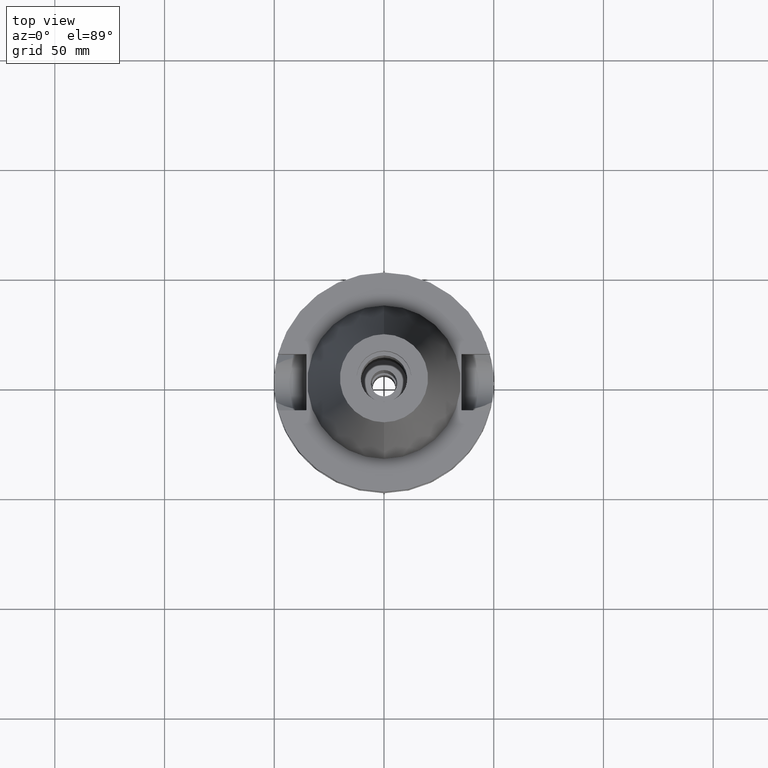
[diagram: clean part render]
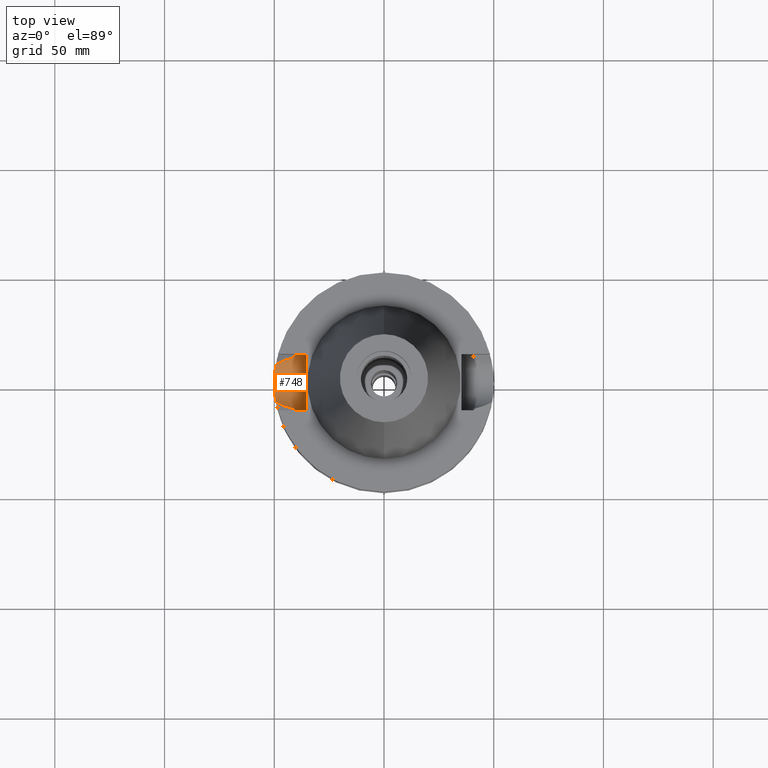
[diagram: same view with one face highlighted and labeled with its STEP entity id]
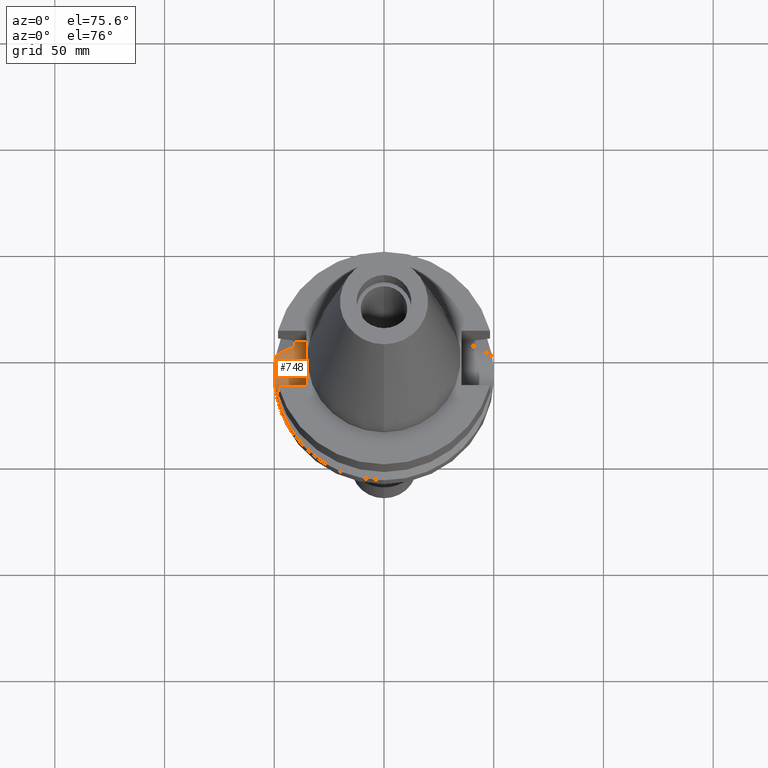
[diagram: same view with one face highlighted and labeled with its STEP entity id]
A machine part, top view. The second image highlights one B-rep face of the part: STEP entity #748.
A second angle (auxiliary view) of the same face is appended — the face is thin or edge-on in the first view.
In plain terms, the highlighted cylindrical surface (edge-blend (fillet) strip) has radius 12.85 mm, axis along (-1, 0, 0).
Its self-contained STEP definition (entity closure, byte-faithful):
#2 = CARTESIAN_POINT ( 'NONE',  ( -49.54911688010221127, 6.699663358771627664, -32.11529720896147921 ) ) ;
#8 = CARTESIAN_POINT ( 'NONE',  ( -35.39999999999999858, 1.497743035356999952E-14, -21.14999999999999858 ) ) ;
#37 = EDGE_CURVE ( 'NONE', #409, #2990, #1591, .T. ) ;
#58 = CARTESIAN_POINT ( 'NONE',  ( -49.96641267293247068, 1.854385219668790219, -33.87144511913140121 ) ) ;
#76 = LINE ( 'NONE', #3002, #2242 ) ;
#92 = CARTESIAN_POINT ( 'NONE',  ( -49.86316841597869143, 3.774661687920132014, -33.45988861054671304 ) ) ;
#96 = CARTESIAN_POINT ( 'NONE',  ( -40.85052569294000335, -11.72538061688000077, -26.40718074535000426 ) ) ;
#112 = CARTESIAN_POINT ( 'NONE',  ( -49.79288518047053458, 4.546060314977777850, -33.16898483582498613 ) ) ;
#115 = CARTESIAN_POINT ( 'NONE',  ( -46.25426349573270102, -10.02134542749241675, -29.19415820196960709 ) ) ;
#131 = CARTESIAN_POINT ( 'NONE',  ( -49.79024291477829678, -4.574903425347746300, -33.15803416390642866 ) ) ;
#211 = CARTESIAN_POINT ( 'NONE',  ( -45.46255620677718667, 10.33423941121415268, -28.78715773051326465 ) ) ;
#233 = CARTESIAN_POINT ( 'NONE',  ( -46.92215282494610307, 9.777057082545626443, -29.53784557490737228 ) ) ;
#238 = ORIENTED_EDGE ( 'NONE', *, *, #1646, .T. ) ;
#239 = CARTESIAN_POINT ( 'NONE',  ( -49.52357036712535177, 6.886290592483789830, -31.99961560319520260 ) ) ;
#317 = CARTESIAN_POINT ( 'NONE',  ( -45.39712351162965120, -10.35909442914371148, -28.75340166297553068 ) ) ;
#336 = CARTESIAN_POINT ( 'NONE',  ( -49.79203021163728948, 4.555405786585887462, -33.16544452545556254 ) ) ;
#339 = CARTESIAN_POINT ( 'NONE',  ( -44.04355470672884110, -10.86774847448676340, -28.05710846395182401 ) ) ;
#341 = ORIENTED_EDGE ( 'NONE', *, *, #2988, .F. ) ;
#344 = ORIENTED_EDGE ( 'NONE', *, *, #37, .T. ) ;
#354 = CARTESIAN_POINT ( 'NONE',  ( -49.99991418524945175, 0.01116271476028307501, -34.00001628486791105 ) ) ;
#364 = CARTESIAN_POINT ( 'NONE',  ( -49.99934626388233738, -0.7783924087702759342, -33.99780972341164897 ) ) ;
#409 = VERTEX_POINT ( 'NONE', #2184 ) ;
#419 = CARTESIAN_POINT ( 'NONE',  ( -40.74530521662885718, -12.08734525798915982, -25.53455946907622476 ) ) ;
#438 = CARTESIAN_POINT ( 'NONE',  ( -40.60613812303880366, -12.54578004799953739, -23.92968102609992087 ) ) ;
#460 = CYLINDRICAL_SURFACE ( 'NONE', #628, 12.85000000000000320 ) ;
#469 = CARTESIAN_POINT ( 'NONE',  ( -49.32372953362855839, 8.203519559120604043, -31.05192038084446438 ) ) ;
#485 = CARTESIAN_POINT ( 'NONE',  ( -49.60527657791599410, 6.280734339319516302, -32.36827992143699362 ) ) ;
#496 = CARTESIAN_POINT ( 'NONE',  ( -40.56599794183719609, 12.67508828619679484, -23.26599945042062245 ) ) ;
#514 = CARTESIAN_POINT ( 'NONE',  ( -40.51083188481999997, 12.84999999999999964, -21.14999999999999858 ) ) ;
#531 = CARTESIAN_POINT ( 'NONE',  ( -40.73816962964794186, 12.11682243018512750, -25.53412644634842366 ) ) ;
#542 = CARTESIAN_POINT ( 'NONE',  ( -49.38324903674280364, -7.860828855441734930, -31.35774967441885863 ) ) ;
#543 = ORIENTED_EDGE ( 'NONE', *, *, #784, .T. ) ;
#547 = DIRECTION ( 'NONE',  ( 0.0000000000000000000, -1.000000000000000000, 0.0000000000000000000 ) ) ;
#586 = CARTESIAN_POINT ( 'NONE',  ( -49.99991299091240649, -0.01387171431934752092, -34.00001339701644554 ) ) ;
#621 = CARTESIAN_POINT ( 'NONE',  ( -48.09130041327800598, -9.195347626747997438, -30.13737256061769543 ) ) ;
#628 = AXIS2_PLACEMENT_3D ( 'NONE', #8, #1918, #2193 ) ;
#684 = ORIENTED_EDGE ( 'NONE', *, *, #1184, .F. ) ;
#698 = CARTESIAN_POINT ( 'NONE',  ( -40.63720027270115054, -12.44499102499862353, -24.35263434040134101 ) ) ;
#700 = CARTESIAN_POINT ( 'NONE',  ( -44.90448309188467846, 10.54133073583868807, -28.50009668640061378 ) ) ;
#722 = CARTESIAN_POINT ( 'NONE',  ( -49.55497938657501322, 6.656146421916069755, -32.14173509730801470 ) ) ;
#729 = CARTESIAN_POINT ( 'NONE',  ( -45.20738435670087796, 10.43019398160797095, -28.65591291874309832 ) ) ;
#734 = CARTESIAN_POINT ( 'NONE',  ( -49.37891072628274003, 7.861784141872273146, -31.32216870174198675 ) ) ;
#740 = FACE_OUTER_BOUND ( 'NONE', #1987, .T. ) ;
#748 = ADVANCED_FACE ( 'NONE', ( #740 ), #460, .F. ) ;
#767 = CARTESIAN_POINT ( 'NONE',  ( -40.58662774857589284, 12.60877356363140400, -23.62931612667402703 ) ) ;
#782 = CARTESIAN_POINT ( 'NONE',  ( -49.61106985605450603, -6.224615895569159285, -32.39218330899041121 ) ) ;
#784 = EDGE_CURVE ( 'NONE', #1670, #2320, #2449, .T. ) ;
#798 = CARTESIAN_POINT ( 'NONE',  ( -49.64367505699961214, -5.960659301220391448, -32.53565567264503500 ) ) ;
#800 = CARTESIAN_POINT ( 'NONE',  ( -49.26250064874000145, -8.556052234130000045, -30.73730776426999967 ) ) ;
#814 = CARTESIAN_POINT ( 'NONE',  ( -49.86770969757688476, -3.635792841923492169, -33.47650553576254140 ) ) ;
#835 = CARTESIAN_POINT ( 'NONE',  ( -49.55655823011858274, -6.644396915567839734, -32.14884227884127910 ) ) ;
#836 = CARTESIAN_POINT ( 'NONE',  ( -47.11340124428806320, -9.652428493446249647, -29.63553593233377370 ) ) ;
#849 = ORIENTED_EDGE ( 'NONE', *, *, #2962, .T. ) ;
#852 = CARTESIAN_POINT ( 'NONE',  ( -49.57420851442197574, -6.511617492665340734, -32.22817501051711986 ) ) ;
#913 = CARTESIAN_POINT ( 'NONE',  ( -40.79434733663808998, -11.92110265459549190, -25.97065107317780530 ) ) ;
#926 = CARTESIAN_POINT ( 'NONE',  ( -43.71931600870586720, 10.94308023368884264, -27.88984515802984632 ) ) ;
#943 = CARTESIAN_POINT ( 'NONE',  ( -40.51818735908894809, 12.82722126770181248, -22.03688626290863795 ) ) ;
#974 = CARTESIAN_POINT ( 'NONE',  ( -40.59188576338535626, 12.59181613885665385, -23.71309950381344933 ) ) ;
#1002 = CARTESIAN_POINT ( 'NONE',  ( -40.51083188482001418, 12.85000000000001918, -21.59155125953545706 ) ) ;
#1022 = CARTESIAN_POINT ( 'NONE',  ( -49.79360975992653238, -4.538122689754191974, -33.17198411707290262 ) ) ;
#1023 = VERTEX_POINT ( 'NONE', #2586 ) ;
#1038 = CARTESIAN_POINT ( 'NONE',  ( -49.64898610872445062, 5.924049220385968262, -32.55967030369412640 ) ) ;
#1047 = B_SPLINE_CURVE_WITH_KNOTS ( 'NONE', 3,
 ( #1957, #469, #734, #1441, #2177, #2420, #239, #1204, #2, #2927, #722, #1702, #2687, #485, #1038, #1315, #1074, #1263, #2539, #3039, #2231, #2272, #336, #112, #92, #1056, #58, #2020, #1333, #2816, #1831, #2498, #1574, #354, #586, #364, #2579, #2287, #2310, #814, #2038, #3016, #1561, #1763, #1022, #2555, #131, #2003, #3052, #2748, #798, #782, #1096, #852, #1801, #2986, #835, #2058, #1818, #1284, #542, #2785 ),
 .UNSPECIFIED., .F., .F.,
 ( 4, 2, 2, 1, 1, 1, 1, 2, 2, 2, 2, 1, 1, 1, 2, 2, 2, 2, 1, 1, 1, 2, 2, 2, 2, 1, 1, 1, 1, 2, 2, 2, 2, 1, 1, 1, 1, 2, 2, 4 ),
 ( 0.0000000000000000000, 0.06250000000000278944, 0.09375000000000381639, 0.1093750000000042744, 0.1171875000000049682, 0.1210937500000051625, 0.1230468750000052736, 0.1240234375000052597, 0.1250000000000052458, 0.1874999999999965028, 0.2187499999999923395, 0.2343749999999905353, 0.2421874999999895084, 0.2460937499999888978, 0.2480468749999887590, 0.2499999999999886202, 0.3749999999999761857, 0.4374999999999700240, 0.4687499999999668598, 0.4843749999999652500, 0.4921874999999644729, 0.4960937499999640843, 0.4999999999999636957, 0.6249999999999511502, 0.6874999999999449329, 0.7187499999999420464, 0.7343749999999403810, 0.7421874999999393818, 0.7460937499999387157, 0.7480468749999386047, 0.7499999999999383826, 0.8124999999999378275, 0.8437499999999377165, 0.8593749999999378275, 0.8671874999999376055, 0.8710937499999374944, 0.8730468749999373834, 0.8740234374999372724, 0.8749999999999372724, 1.000000000000000000 ),
 .UNSPECIFIED. ) ;
#1056 = CARTESIAN_POINT ( 'NONE',  ( -49.91493021332784963, 3.003896466815075161, -33.66817669889064035 ) ) ;
#1074 = CARTESIAN_POINT ( 'NONE',  ( -49.72680802968161373, 5.221633248987734177, -32.89276324341104640 ) ) ;
#1096 = CARTESIAN_POINT ( 'NONE',  ( -49.59437430904353050, -6.356898426433481575, -32.31828320211585748 ) ) ;
#1102 = LINE ( 'NONE', #3057, #2511 ) ;
#1184 = EDGE_CURVE ( 'NONE', #1782, #2990, #1102, .T. ) ;
#1204 = CARTESIAN_POINT ( 'NONE',  ( -49.54076674236112154, 6.761186822949496467, -32.07757331953104796 ) ) ;
#1263 = CARTESIAN_POINT ( 'NONE',  ( -49.75319208401479187, 4.961948302789895848, -33.00370953055943346 ) ) ;
#1284 = CARTESIAN_POINT ( 'NONE',  ( -49.48027691455357058, -7.211450073344570555, -31.80475318143859198 ) ) ;
#1286 = CARTESIAN_POINT ( 'NONE',  ( -45.98905974673658648, -10.12978577807065861, -29.05783259301320953 ) ) ;
#1315 = CARTESIAN_POINT ( 'NONE',  ( -49.70815231116397825, 5.396331756492370069, -32.81362775790666575 ) ) ;
#1333 = CARTESIAN_POINT ( 'NONE',  ( -49.99187456499024051, 0.9032426761927632164, -33.96962919614279741 ) ) ;
#1359 = VERTEX_POINT ( 'NONE', #2995 ) ;
#1371 = DIRECTION ( 'NONE',  ( 1.000000000000000000, 3.440913946376999995E-14, 0.0000000000000000000 ) ) ;
#1373 = ORIENTED_EDGE ( 'NONE', *, *, #2517, .T. ) ;
#1402 = CARTESIAN_POINT ( 'NONE',  ( -40.60257244295533496, -12.55730800210175779, -23.87713024257998740 ) ) ;
#1414 = CARTESIAN_POINT ( 'NONE',  ( -40.51083188481999287, -12.84999999999998721, -22.03309742078719324 ) ) ;
#1416 = CARTESIAN_POINT ( 'NONE',  ( -44.63764080723601779, 10.63536077855253481, -28.36277646006688613 ) ) ;
#1435 = AXIS2_PLACEMENT_3D ( 'NONE', #2206, #2751, #547 ) ;
#1441 = CARTESIAN_POINT ( 'NONE',  ( -49.45261097691241758, 7.378715929221312919, -31.67219524307446221 ) ) ;
#1472 = CARTESIAN_POINT ( 'NONE',  ( -44.09433939914935507, 10.82151526533869834, -28.08307146750381733 ) ) ;
#1486 = CARTESIAN_POINT ( 'NONE',  ( -40.54025378189581374, 12.75731467218668058, -22.70686882179913013 ) ) ;
#1524 = CARTESIAN_POINT ( 'NONE',  ( -48.69901141820753310, -8.879419516215236285, -30.44872337495504766 ) ) ;
#1561 = CARTESIAN_POINT ( 'NONE',  ( -49.80427849007764962, -4.419869523325455241, -33.21613890185383866 ) ) ;
#1574 = CARTESIAN_POINT ( 'NONE',  ( -49.99988097685182709, 0.05777274215273406344, -33.99989126171249865 ) ) ;
#1591 = CIRCLE ( 'NONE', #1435, 12.84999999999999964 ) ;
#1625 = B_SPLINE_CURVE_WITH_KNOTS ( 'NONE', 3,
 ( #514, #1002, #943, #1486, #2966, #496, #2943, #767, #974, #2468, #2733, #1680, #531, #2673 ),
 .UNSPECIFIED., .F., .F.,
 ( 4, 2, 2, 1, 1, 2, 2, 4 ),
 ( 0.0000000000000000000, 0.2499999999999897859, 0.3749999999999846234, 0.4374999999999831246, 0.4687499999999832356, 0.4843749999999832356, 0.4999999999999833467, 1.000000000000000000 ),
 .UNSPECIFIED. ) ;
#1644 = CARTESIAN_POINT ( 'NONE',  ( -40.61157027093302929, -12.52820949424839547, -24.00859467746296261 ) ) ;
#1646 = EDGE_CURVE ( 'NONE', #2564, #1023, #2727, .T. ) ;
#1670 = VERTEX_POINT ( 'NONE', #1916 ) ;
#1672 = CARTESIAN_POINT ( 'NONE',  ( -40.62483067706965301, -12.48524489601429188, -24.19332376315256639 ) ) ;
#1680 = CARTESIAN_POINT ( 'NONE',  ( -40.65436025735043302, 12.39001373507936599, -24.66363152923379332 ) ) ;
#1702 = CARTESIAN_POINT ( 'NONE',  ( -49.55614273364793831, 6.647481783964428459, -32.14697738341040889 ) ) ;
#1708 = CARTESIAN_POINT ( 'NONE',  ( -48.17476110822943269, 9.180268917916404092, -30.18023473780554866 ) ) ;
#1720 = CARTESIAN_POINT ( 'NONE',  ( -45.48252772035787928, 10.32664150956821203, -28.79742939670805058 ) ) ;
#1732 = CARTESIAN_POINT ( 'NONE',  ( -41.72879699101726203, 11.52142104466728156, -26.86208304574619277 ) ) ;
#1763 = CARTESIAN_POINT ( 'NONE',  ( -49.79683695212183636, -4.502663508518160995, -33.18534950411593343 ) ) ;
#1779 = DIRECTION ( 'NONE',  ( -1.000000000000000000, 3.440913946376999995E-14, 0.0000000000000000000 ) ) ;
#1782 = VERTEX_POINT ( 'NONE', #2129 ) ;
#1801 = CARTESIAN_POINT ( 'NONE',  ( -49.56395370300067071, -6.589055711978542007, -32.18213532710127112 ) ) ;
#1818 = CARTESIAN_POINT ( 'NONE',  ( -49.55415699598182044, -6.662282079216439890, -32.13801721395461186 ) ) ;
#1831 = CARTESIAN_POINT ( 'NONE',  ( -49.99918696134229634, 0.2913176031074595773, -33.99729381970358588 ) ) ;
#1883 = CARTESIAN_POINT ( 'NONE',  ( -40.85052569294000335, -11.72538061688000077, -26.40718074535000426 ) ) ;
#1901 = CARTESIAN_POINT ( 'NONE',  ( -40.54025138676031048, -12.75862549540203794, -22.93152005439002750 ) ) ;
#1916 = CARTESIAN_POINT ( 'NONE',  ( -40.85052569294000335, 11.72538061688000077, -26.40718074535000426 ) ) ;
#1918 = DIRECTION ( 'NONE',  ( -1.000000000000000000, 0.0000000000000000000, 0.0000000000000000000 ) ) ;
#1957 = CARTESIAN_POINT ( 'NONE',  ( -49.26250064874000145, 8.556052234130000045, -30.73730776426999967 ) ) ;
#1987 = EDGE_LOOP ( 'NONE', ( #238, #341, #344, #684, #849, #543, #2029, #1373 ) ) ;
#2003 = CARTESIAN_POINT ( 'NONE',  ( -49.75837799924512694, -4.920711290648259961, -33.02594009685792287 ) ) ;
#2020 = CARTESIAN_POINT ( 'NONE',  ( -49.97921345339749877, 1.472277931494030856, -33.92105547428267442 ) ) ;
#2029 = ORIENTED_EDGE ( 'NONE', *, *, #2964, .T. ) ;
#2038 = CARTESIAN_POINT ( 'NONE',  ( -49.84644755714997189, -3.921701316244216251, -33.38981237020178838 ) ) ;
#2058 = CARTESIAN_POINT ( 'NONE',  ( -49.55507279109288277, -6.655467508107193453, -32.14214692837406062 ) ) ;
#2060 = CARTESIAN_POINT ( 'NONE',  ( -40.85052569294000335, -11.72538061688000077, -26.40718074535000426 ) ) ;
#2078 = CARTESIAN_POINT ( 'NONE',  ( -45.51225669998488144, -10.31543536625859225, -28.81262401028418196 ) ) ;
#2129 = CARTESIAN_POINT ( 'NONE',  ( -40.51083188481999997, 12.84999999999999964, -21.14999999999999858 ) ) ;
#2177 = CARTESIAN_POINT ( 'NONE',  ( -49.47566580406373049, 7.222569676697139229, -31.77964915373135568 ) ) ;
#2184 = CARTESIAN_POINT ( 'NONE',  ( -35.39999999999999858, -12.84999999999999964, -21.14999999999999858 ) ) ;
#2193 = DIRECTION ( 'NONE',  ( 0.0000000000000000000, 0.0000000000000000000, -1.000000000000000000 ) ) ;
#2206 = CARTESIAN_POINT ( 'NONE',  ( -35.39999999999999858, 1.497743035356999952E-14, -21.14999999999999858 ) ) ;
#2231 = CARTESIAN_POINT ( 'NONE',  ( -49.78714585121936409, 4.608515934852143836, -33.14520686594116228 ) ) ;
#2242 = VECTOR ( 'NONE', #1779, 1000.000000000000000 ) ;
#2258 = CARTESIAN_POINT ( 'NONE',  ( -45.36111763892132842, -10.37266291030233667, -28.73488012321097784 ) ) ;
#2272 = CARTESIAN_POINT ( 'NONE',  ( -49.79008146598089013, 4.576641034239830930, -33.15737214666359733 ) ) ;
#2276 = CARTESIAN_POINT ( 'NONE',  ( -42.54342861344874649, -11.33224041495751599, -27.28402305430491381 ) ) ;
#2287 = CARTESIAN_POINT ( 'NONE',  ( -49.92886531844425946, -2.680927593398129360, -33.72320138176213788 ) ) ;
#2310 = CARTESIAN_POINT ( 'NONE',  ( -49.90699458491213392, -3.063359791778840435, -33.63580153760180025 ) ) ;
#2320 = VERTEX_POINT ( 'NONE', #2554 ) ;
#2348 = CARTESIAN_POINT ( 'NONE',  ( -40.68244639105407146, -12.29666286613858084, -24.88711474769678844 ) ) ;
#2378 = CARTESIAN_POINT ( 'NONE',  ( -40.60092910951220091, -12.56261850439631722, -23.85257851100598003 ) ) ;
#2420 = CARTESIAN_POINT ( 'NONE',  ( -49.50798016020279135, 6.996952391812111038, -31.92837050268994403 ) ) ;
#2449 = B_SPLINE_CURVE_WITH_KNOTS ( 'NONE', 3,
 ( #2949, #1732, #2902, #926, #1472, #1416, #700, #729, #2934, #2458, #211, #1720, #233, #1708, #2693 ),
 .UNSPECIFIED., .F., .F.,
 ( 4, 2, 2, 1, 1, 1, 2, 2, 4 ),
 ( 0.0000000000000000000, 0.2499999999999860112, 0.3749999999999799050, 0.4374999999999769074, 0.4687499999999742983, 0.4843749999999738542, 0.4921874999999738542, 0.4999999999999737987, 1.000000000000000000 ),
 .UNSPECIFIED. ) ;
#2458 = CARTESIAN_POINT ( 'NONE',  ( -45.42028635155828908, 10.35027050716532848, -28.76541744341924201 ) ) ;
#2468 = CARTESIAN_POINT ( 'NONE',  ( -40.59544857123437112, 12.58031941217195815, -23.76894563306476016 ) ) ;
#2498 = CARTESIAN_POINT ( 'NONE',  ( -49.99978007004364144, 0.1277363651429697100, -33.99951339606799650 ) ) ;
#2501 = CARTESIAN_POINT ( 'NONE',  ( -45.67240023804580318, -10.25395694674369196, -28.89499145002070080 ) ) ;
#2511 = VECTOR ( 'NONE', #1371, 1000.000000000000000 ) ;
#2517 = EDGE_CURVE ( 'NONE', #1359, #2564, #2632, .T. ) ;
#2539 = CARTESIAN_POINT ( 'NONE',  ( -49.76598423032054086, 4.832695556055663033, -33.05724367525100860 ) ) ;
#2541 = CARTESIAN_POINT ( 'NONE',  ( -46.77637941102547359, -9.801981280780132977, -29.46246319648933820 ) ) ;
#2554 = CARTESIAN_POINT ( 'NONE',  ( -49.26250064874000145, 8.556052234130000045, -30.73730776426999967 ) ) ;
#2555 = CARTESIAN_POINT ( 'NONE',  ( -49.79144986254237182, -4.561756691881142523, -33.16303606681061211 ) ) ;
#2564 = VERTEX_POINT ( 'NONE', #2060 ) ;
#2579 = CARTESIAN_POINT ( 'NONE',  ( -49.98151994496643624, -1.536776125541538418, -33.93130987534222243 ) ) ;
#2582 = CARTESIAN_POINT ( 'NONE',  ( -45.37402993670243490, -10.36780320410430178, -28.74152230856367041 ) ) ;
#2586 = CARTESIAN_POINT ( 'NONE',  ( -40.51083188481999997, -12.84999999999999964, -21.14999999999999858 ) ) ;
#2632 = B_SPLINE_CURVE_WITH_KNOTS ( 'NONE', 3,
 ( #800, #1524, #621, #836, #2541, #115, #1286, #2501, #2078, #3053, #317, #2582, #2258, #339, #2276, #96 ),
 .UNSPECIFIED., .F., .F.,
 ( 4, 2, 2, 1, 1, 1, 1, 2, 2, 4 ),
 ( 0.0000000000000000000, 0.2500000000000232592, 0.3750000000000341949, 0.4375000000000397460, 0.4687500000000432987, 0.4843750000000449640, 0.4921875000000447420, 0.4960937500000442979, 0.5000000000000438538, 1.000000000000000000 ),
 .UNSPECIFIED. ) ;
#2673 = CARTESIAN_POINT ( 'NONE',  ( -40.85052569294000335, 11.72538061688000077, -26.40718074535000426 ) ) ;
#2687 = CARTESIAN_POINT ( 'NONE',  ( -49.55655204302973971, 6.644431293626245960, -32.14882155011933662 ) ) ;
#2693 = CARTESIAN_POINT ( 'NONE',  ( -49.26250064874000145, 8.556052234130000045, -30.73730776426999967 ) ) ;
#2727 = B_SPLINE_CURVE_WITH_KNOTS ( 'NONE', 3,
 ( #1883, #913, #419, #2348, #2915, #698, #1672, #1644, #438, #1402, #2378, #1901, #1414, #2867 ),
 .UNSPECIFIED., .F., .F.,
 ( 4, 2, 2, 1, 1, 2, 2, 4 ),
 ( 0.0000000000000000000, 0.2500000000000097700, 0.3750000000000154321, 0.4375000000000180966, 0.4687500000000194289, 0.4843750000000190403, 0.5000000000000186517, 1.000000000000000000 ),
 .UNSPECIFIED. ) ;
#2733 = CARTESIAN_POINT ( 'NONE',  ( -40.59737061725677876, 12.57411364518127783, -23.79856269428630355 ) ) ;
#2748 = CARTESIAN_POINT ( 'NONE',  ( -49.66436400019401276, -5.785502170129738886, -32.62553262875145066 ) ) ;
#2751 = DIRECTION ( 'NONE',  ( 1.000000000000000000, 0.0000000000000000000, 0.0000000000000000000 ) ) ;
#2762 = CARTESIAN_POINT ( 'NONE',  ( -35.39999999999999858, 12.84999999999999964, -21.14999999999999858 ) ) ;
#2785 = CARTESIAN_POINT ( 'NONE',  ( -49.26250064874000145, -8.556052234130000045, -30.73730776426999967 ) ) ;
#2816 = CARTESIAN_POINT ( 'NONE',  ( -49.99657010601041662, 0.6197521076395836603, -33.98745896368236430 ) ) ;
#2867 = CARTESIAN_POINT ( 'NONE',  ( -40.51083188481999997, -12.84999999999999964, -21.14999999999999858 ) ) ;
#2902 = CARTESIAN_POINT ( 'NONE',  ( -42.55577848221837911, 11.29793403236901206, -27.28964637588489950 ) ) ;
#2915 = CARTESIAN_POINT ( 'NONE',  ( -40.66327750826899745, -12.35976744502590563, -24.67240287692017375 ) ) ;
#2927 = CARTESIAN_POINT ( 'NONE',  ( -49.55322993650354846, 6.669162168907337040, -32.13384980552147852 ) ) ;
#2934 = CARTESIAN_POINT ( 'NONE',  ( -45.35673130562383903, 10.37429503524676733, -28.73272937167314822 ) ) ;
#2943 = CARTESIAN_POINT ( 'NONE',  ( -40.57496242610246640, 12.64633064307739474, -23.43373649621299748 ) ) ;
#2949 = CARTESIAN_POINT ( 'NONE',  ( -40.85052569294000335, 11.72538061688000077, -26.40718074535000426 ) ) ;
#2962 = EDGE_CURVE ( 'NONE', #1782, #1670, #1625, .T. ) ;
#2964 = EDGE_CURVE ( 'NONE', #2320, #1359, #1047, .T. ) ;
#2966 = CARTESIAN_POINT ( 'NONE',  ( -40.54944812473201665, 12.72805978472033317, -22.93052269427768053 ) ) ;
#2986 = CARTESIAN_POINT ( 'NONE',  ( -49.55878331876235876, -6.627792135814646990, -32.15886750778766157 ) ) ;
#2988 = EDGE_CURVE ( 'NONE', #409, #1023, #76, .T. ) ;
#2990 = VERTEX_POINT ( 'NONE', #2762 ) ;
#2995 = CARTESIAN_POINT ( 'NONE',  ( -49.26250064874000145, -8.556052234130000045, -30.73730776426999967 ) ) ;
#3002 = CARTESIAN_POINT ( 'NONE',  ( -35.39999999999999858, -12.84999999999999964, -21.14999999999999858 ) ) ;
#3016 = CARTESIAN_POINT ( 'NONE',  ( -49.81880725732320769, -4.254068733134296565, -33.27613423617461308 ) ) ;
#3039 = CARTESIAN_POINT ( 'NONE',  ( -49.78020860950417159, 4.683043310453007813, -33.11642240103836343 ) ) ;
#3052 = CARTESIAN_POINT ( 'NONE',  ( -49.72328725747026823, -5.263682542438380629, -32.87883983985163638 ) ) ;
#3053 = CARTESIAN_POINT ( 'NONE',  ( -45.43173148502555847, -10.34602008667518902, -28.77120381811900174 ) ) ;
#3057 = CARTESIAN_POINT ( 'NONE',  ( -40.51083188481999997, 12.84999999999999964, -21.14999999999999858 ) ) ;